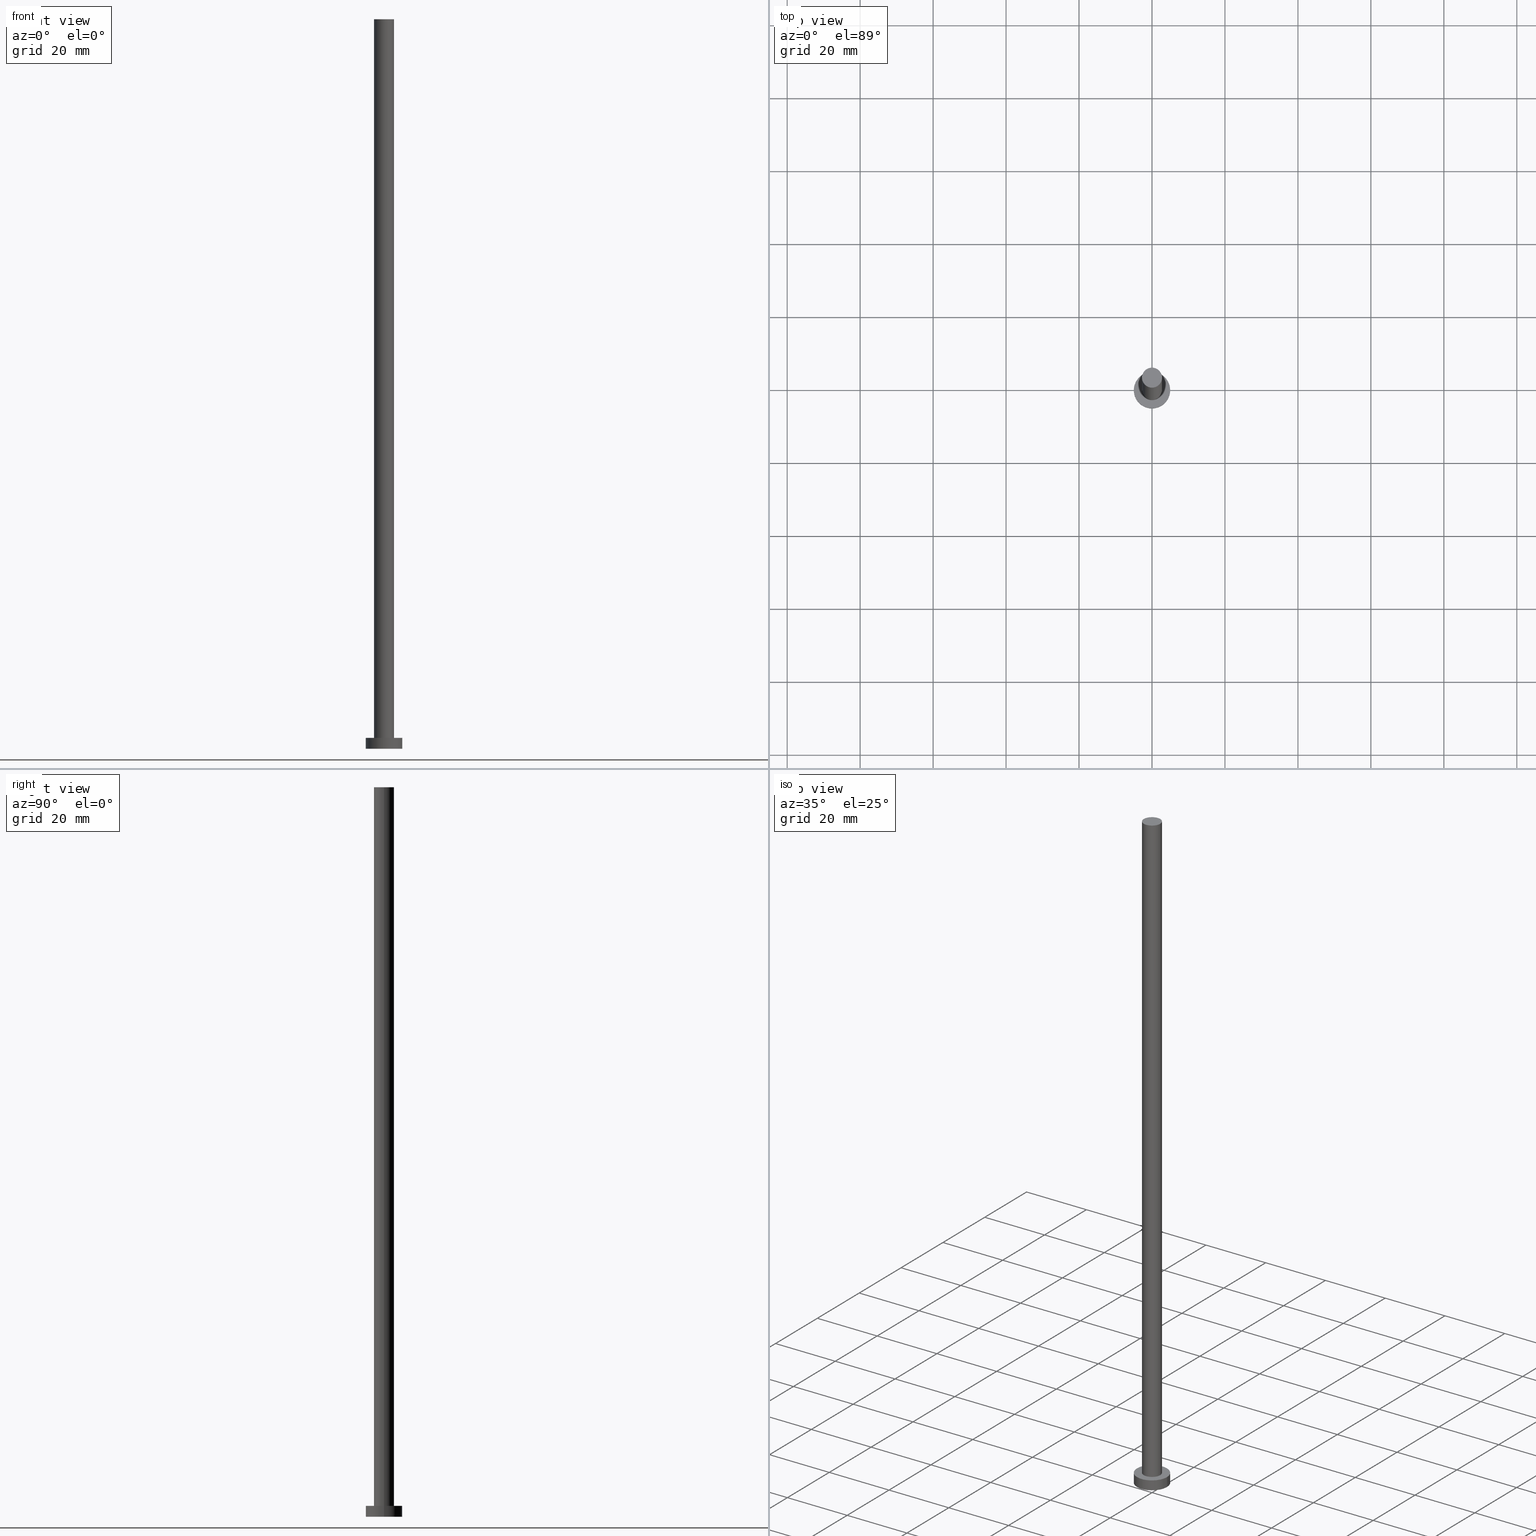
[diagram: canonical four-view strip — front | top / right | iso, engineering-drawing reading convention]
A machine part, canonical four-view strip (front | top / right | iso — engineering-drawing reading convention). The complete STEP part file that produces these views, byte-faithful:
ISO-10303-21;
HEADER;
FILE_DESCRIPTION (( 'STEP AP203' ),
    '1' );
FILE_NAME ('3cec.STEP',
    '2023-02-12T12:25:18',
    ( '' ),
    ( '' ),
    'SwSTEP 2.0',
    'SolidWorks 2019',
    '' );
FILE_SCHEMA (( 'CONFIG_CONTROL_DESIGN' ));
ENDSEC;

DATA;
#1 = CARTESIAN_POINT ( 'NONE',  ( 0.000000000000000000, 0.000000000000000000, 200.0000000000000000 ) ) ;
#2 = ORIENTED_EDGE ( 'NONE', *, *, #71, .T. ) ;
#3 = CALENDAR_DATE ( 2023, 12, 2 ) ;
#4 = CARTESIAN_POINT ( 'NONE',  ( -5.000000000000000000, 0.000000000000000000, 3.000000000000000000 ) ) ;
#5 = MECHANICAL_CONTEXT ( 'NONE', #187, 'mechanical' ) ;
#6 = DIRECTION ( 'NONE',  ( -0.000000000000000000, -0.000000000000000000, -1.000000000000000000 ) ) ;
#7 = DATE_TIME_ROLE ( 'creation_date' ) ;
#8 = COORDINATED_UNIVERSAL_TIME_OFFSET ( 1, 0, .AHEAD. ) ;
#9 = CARTESIAN_POINT ( 'NONE',  ( -5.000000000000000000, 0.000000000000000000, 0.000000000000000000 ) ) ;
#10 = CC_DESIGN_SECURITY_CLASSIFICATION ( #22, ( #102 ) ) ;
#11 = APPROVAL ( #156, 'NEUR�EN�' ) ;
#12 = CC_DESIGN_PERSON_AND_ORGANIZATION_ASSIGNMENT ( #144, #218, ( #102 ) ) ;
#13 =( GEOMETRIC_REPRESENTATION_CONTEXT ( 3 ) GLOBAL_UNCERTAINTY_ASSIGNED_CONTEXT ( ( #166 ) ) GLOBAL_UNIT_ASSIGNED_CONTEXT ( ( #28, #196, #237 ) ) REPRESENTATION_CONTEXT ( 'NONE', 'WORKASPACE' ) );
#14 = ORIENTED_EDGE ( 'NONE', *, *, #81, .F. ) ;
#15 = ORIENTED_EDGE ( 'NONE', *, *, #146, .T. ) ;
#16 = DESIGN_CONTEXT ( 'detailed design', #97, 'design' ) ;
#17 = PERSON ( 'NEUR�EN�', 'NEUR�EN�', 'NEUR�EN�', ('NEUR�EN�'), ('NEUR�EN�'), ('NEUR�EN�') ) ;
#18 = ORIENTED_EDGE ( 'NONE', *, *, #203, .F. ) ;
#19 = CC_DESIGN_PERSON_AND_ORGANIZATION_ASSIGNMENT ( #89, #30, ( #204 ) ) ;
#20 = VERTEX_POINT ( 'NONE', #103 ) ;
#21 = DIRECTION ( 'NONE',  ( 1.000000000000000000, 0.000000000000000000, 0.000000000000000000 ) ) ;
#22 = SECURITY_CLASSIFICATION ( '', '', #80 ) ;
#23 = ORIENTED_EDGE ( 'NONE', *, *, #244, .T. ) ;
#24 = FACE_OUTER_BOUND ( 'NONE', #186, .T. ) ;
#25 = LINE ( 'NONE', #143, #164 ) ;
#26 = AXIS2_PLACEMENT_3D ( 'NONE', #119, #217, #47 ) ;
#27 = DIRECTION ( 'NONE',  ( 1.000000000000000000, 0.000000000000000000, 0.000000000000000000 ) ) ;
#28 =( LENGTH_UNIT ( ) NAMED_UNIT ( * ) SI_UNIT ( .MILLI., .METRE. ) );
#29 = DIRECTION ( 'NONE',  ( -0.000000000000000000, -0.000000000000000000, -1.000000000000000000 ) ) ;
#30 = PERSON_AND_ORGANIZATION_ROLE ( 'design_owner' ) ;
#31 = CARTESIAN_POINT ( 'NONE',  ( 0.000000000000000000, 0.000000000000000000, 3.000000000000000000 ) ) ;
#32 = CIRCLE ( 'NONE', #228, 2.750000000000000000 ) ;
#33 = DIRECTION ( 'NONE',  ( 0.000000000000000000, 0.000000000000000000, 1.000000000000000000 ) ) ;
#34 = ORGANIZATION ( 'NEUR�EN�', 'NEUR�EN�', '' ) ;
#35 = PRODUCT_DEFINITION ( 'NEZN�M�', '', #102, #16 ) ;
#36 = ORIENTED_EDGE ( 'NONE', *, *, #244, .F. ) ;
#37 = EDGE_CURVE ( 'NONE', #114, #249, #55, .T. ) ;
#38 = VECTOR ( 'NONE', #185, 1000.000000000000000 ) ;
#39 = APPROVAL_ROLE ( '' ) ;
#40 = EDGE_CURVE ( 'NONE', #85, #20, #49, .T. ) ;
#41 = CARTESIAN_POINT ( 'NONE',  ( -2.750000000000000000, 0.000000000000000000, 3.000000000000000000 ) ) ;
#42 = CC_DESIGN_DATE_AND_TIME_ASSIGNMENT ( #176, #7, ( #35 ) ) ;
#43 = ORIENTED_EDGE ( 'NONE', *, *, #37, .F. ) ;
#44 = EDGE_CURVE ( 'NONE', #174, #227, #132, .T. ) ;
#45 = LOCAL_TIME ( 13, 25, 18.00000000000000000, #149 ) ;
#46 = DIRECTION ( 'NONE',  ( 0.000000000000000000, 0.000000000000000000, 1.000000000000000000 ) ) ;
#47 = DIRECTION ( 'NONE',  ( 1.000000000000000000, 0.000000000000000000, -0.000000000000000000 ) ) ;
#48 = APPROVAL_STATUS ( 'not_yet_approved' ) ;
#49 = CIRCLE ( 'NONE', #236, 2.750000000000000000 ) ;
#50 = DIRECTION ( 'NONE',  ( 1.000000000000000000, 0.000000000000000000, -0.000000000000000000 ) ) ;
#51 = CYLINDRICAL_SURFACE ( 'NONE', #131, 2.750000000000000000 ) ;
#52 = PERSON_AND_ORGANIZATION ( #17, #34 ) ;
#53 = CARTESIAN_POINT ( 'NONE',  ( 5.000000000000000000, 6.123233995736766282E-16, 3.000000000000000000 ) ) ;
#54 = AXIS2_PLACEMENT_3D ( 'NONE', #64, #230, #250 ) ;
#55 = CIRCLE ( 'NONE', #253, 5.000000000000000000 ) ;
#56 = ORIENTED_EDGE ( 'NONE', *, *, #44, .T. ) ;
#57 = CALENDAR_DATE ( 2023, 12, 2 ) ;
#58 = APPROVAL ( #255, 'NEUR�EN�' ) ;
#59 = CARTESIAN_POINT ( 'NONE',  ( 5.000000000000000000, 6.123233995736766282E-16, 3.000000000000000000 ) ) ;
#60 = AXIS2_PLACEMENT_3D ( 'NONE', #161, #111, #75 ) ;
#61 = CC_DESIGN_DATE_AND_TIME_ASSIGNMENT ( #246, #210, ( #22 ) ) ;
#62 = ORIENTED_EDGE ( 'NONE', *, *, #37, .T. ) ;
#63 = ADVANCED_FACE ( 'NONE', ( #24 ), #141, .F. ) ;
#64 = CARTESIAN_POINT ( 'NONE',  ( 0.000000000000000000, 0.000000000000000000, 200.0000000000000000 ) ) ;
#65 = ORIENTED_EDGE ( 'NONE', *, *, #127, .F. ) ;
#66 = CARTESIAN_POINT ( 'NONE',  ( 0.000000000000000000, 0.000000000000000000, 3.000000000000000000 ) ) ;
#67 = AXIS2_PLACEMENT_3D ( 'NONE', #31, #241, #76 ) ;
#68 = VERTEX_POINT ( 'NONE', #41 ) ;
#69 = DATE_AND_TIME ( #86, #45 ) ;
#70 = APPROVAL_ROLE ( '' ) ;
#71 = EDGE_CURVE ( 'NONE', #223, #68, #243, .T. ) ;
#72 = CARTESIAN_POINT ( 'NONE',  ( 0.000000000000000000, 0.000000000000000000, 3.000000000000000000 ) ) ;
#73 = APPLICATION_PROTOCOL_DEFINITION ( 'international standard', 'config_control_design', 1994, #187 ) ;
#74 = CC_DESIGN_APPROVAL ( #58, ( #35 ) ) ;
#75 = DIRECTION ( 'NONE',  ( 1.000000000000000000, 0.000000000000000000, 0.000000000000000000 ) ) ;
#76 = DIRECTION ( 'NONE',  ( 1.000000000000000000, 0.000000000000000000, -0.000000000000000000 ) ) ;
#77 = MANIFOLD_SOLID_BREP ( 'P�idat vysunut�m3', #201 ) ;
#78 = ADVANCED_FACE ( 'NONE', ( #101 ), #212, .T. ) ;
#79 = EDGE_LOOP ( 'NONE', ( #56, #15 ) ) ;
#80 = SECURITY_CLASSIFICATION_LEVEL ( 'unclassified' ) ;
#81 = EDGE_CURVE ( 'NONE', #20, #85, #32, .T. ) ;
#82 = EDGE_LOOP ( 'NONE', ( #172, #213, #62, #105 ) ) ;
#83 = ORIENTED_EDGE ( 'NONE', *, *, #40, .T. ) ;
#84 = CARTESIAN_POINT ( 'NONE',  ( -2.750000000000000000, 0.000000000000000000, 200.0000000000000000 ) ) ;
#85 = VERTEX_POINT ( 'NONE', #120 ) ;
#86 = CALENDAR_DATE ( 2023, 12, 2 ) ;
#87 = DIRECTION ( 'NONE',  ( 0.000000000000000000, 0.000000000000000000, 1.000000000000000000 ) ) ;
#88 = CARTESIAN_POINT ( 'NONE',  ( 0.000000000000000000, 0.000000000000000000, 200.0000000000000000 ) ) ;
#89 = PERSON_AND_ORGANIZATION ( #17, #34 ) ;
#90 = FACE_BOUND ( 'NONE', #158, .T. ) ;
#91 = CC_DESIGN_PERSON_AND_ORGANIZATION_ASSIGNMENT ( #199, #173, ( #35 ) ) ;
#92 = CARTESIAN_POINT ( 'NONE',  ( 0.000000000000000000, 0.000000000000000000, 0.000000000000000000 ) ) ;
#93 = LOCAL_TIME ( 13, 25, 18.00000000000000000, #248 ) ;
#94 = FACE_OUTER_BOUND ( 'NONE', #254, .T. ) ;
#95 = ADVANCED_BREP_SHAPE_REPRESENTATION ( '3cec', ( #77, #148 ), #13 ) ;
#96 = VECTOR ( 'NONE', #6, 1000.000000000000000 ) ;
#97 = APPLICATION_CONTEXT ( 'configuration controlled 3d designs of mechanical parts and assemblies' ) ;
#98 = ORIENTED_EDGE ( 'NONE', *, *, #81, .T. ) ;
#99 = PERSON_AND_ORGANIZATION ( #17, #34 ) ;
#100 = PERSON_AND_ORGANIZATION_ROLE ( 'classification_officer' ) ;
#101 = FACE_OUTER_BOUND ( 'NONE', #193, .T. ) ;
#102 = PRODUCT_DEFINITION_FORMATION_WITH_SPECIFIED_SOURCE ( 'LIBOVOLN�', '', #204, .NOT_KNOWN. ) ;
#103 = CARTESIAN_POINT ( 'NONE',  ( -2.750000000000000000, 0.000000000000000000, 200.0000000000000000 ) ) ;
#104 = LINE ( 'NONE', #84, #108 ) ;
#105 = ORIENTED_EDGE ( 'NONE', *, *, #165, .F. ) ;
#106 = ORIENTED_EDGE ( 'NONE', *, *, #165, .T. ) ;
#107 = EDGE_CURVE ( 'NONE', #227, #114, #225, .T. ) ;
#108 = VECTOR ( 'NONE', #159, 1000.000000000000000 ) ;
#109 = APPLICATION_PROTOCOL_DEFINITION ( 'international standard', 'config_control_design', 1994, #97 ) ;
#110 = ADVANCED_FACE ( 'NONE', ( #189 ), #169, .T. ) ;
#111 = DIRECTION ( 'NONE',  ( 0.000000000000000000, 0.000000000000000000, 1.000000000000000000 ) ) ;
#112 = CIRCLE ( 'NONE', #125, 5.000000000000000000 ) ;
#113 = PRODUCT_DEFINITION_SHAPE ( 'NONE', 'NONE',  #35 ) ;
#114 = VERTEX_POINT ( 'NONE', #252 ) ;
#115 = ORIENTED_EDGE ( 'NONE', *, *, #71, .F. ) ;
#116 = PERSON_AND_ORGANIZATION ( #17, #34 ) ;
#117 = AXIS2_PLACEMENT_3D ( 'NONE', #88, #33, #50 ) ;
#118 = PERSON_AND_ORGANIZATION_ROLE ( 'design_supplier' ) ;
#119 = CARTESIAN_POINT ( 'NONE',  ( 0.000000000000000000, 0.000000000000000000, 0.000000000000000000 ) ) ;
#120 = CARTESIAN_POINT ( 'NONE',  ( 2.750000000000000000, 3.367778697655221012E-16, 200.0000000000000000 ) ) ;
#121 = ORIENTED_EDGE ( 'NONE', *, *, #203, .T. ) ;
#122 = DIRECTION ( 'NONE',  ( 1.000000000000000000, 0.000000000000000000, 0.000000000000000000 ) ) ;
#123 = CARTESIAN_POINT ( 'NONE',  ( 0.000000000000000000, 0.000000000000000000, 3.000000000000000000 ) ) ;
#124 = LINE ( 'NONE', #202, #96 ) ;
#125 = AXIS2_PLACEMENT_3D ( 'NONE', #66, #140, #216 ) ;
#126 = COORDINATED_UNIVERSAL_TIME_OFFSET ( 1, 0, .AHEAD. ) ;
#127 = EDGE_CURVE ( 'NONE', #20, #68, #104, .T. ) ;
#128 = CARTESIAN_POINT ( 'NONE',  ( 2.750000000000000000, 3.367778697655221012E-16, 3.000000000000000000 ) ) ;
#129 = CALENDAR_DATE ( 2023, 12, 2 ) ;
#130 = DIRECTION ( 'NONE',  ( 1.000000000000000000, 0.000000000000000000, 0.000000000000000000 ) ) ;
#131 = AXIS2_PLACEMENT_3D ( 'NONE', #150, #29, #219 ) ;
#132 = CIRCLE ( 'NONE', #145, 5.000000000000000000 ) ;
#133 = APPROVAL_DATE_TIME ( #226, #11 ) ;
#134 = DIRECTION ( 'NONE',  ( -0.000000000000000000, -0.000000000000000000, -1.000000000000000000 ) ) ;
#135 = DIRECTION ( 'NONE',  ( 0.000000000000000000, 0.000000000000000000, 1.000000000000000000 ) ) ;
#136 = ORIENTED_EDGE ( 'NONE', *, *, #208, .F. ) ;
#137 = AXIS2_PLACEMENT_3D ( 'NONE', #192, #134, #247 ) ;
#138 = DIRECTION ( 'NONE',  ( 0.000000000000000000, 0.000000000000000000, 1.000000000000000000 ) ) ;
#139 = CIRCLE ( 'NONE', #60, 2.750000000000000000 ) ;
#140 = DIRECTION ( 'NONE',  ( 0.000000000000000000, 0.000000000000000000, 1.000000000000000000 ) ) ;
#141 = PLANE ( 'NONE',  #26 ) ;
#142 = APPROVAL_DATE_TIME ( #69, #235 ) ;
#143 = CARTESIAN_POINT ( 'NONE',  ( -5.000000000000000000, 0.000000000000000000, 3.000000000000000000 ) ) ;
#144 = PERSON_AND_ORGANIZATION ( #17, #34 ) ;
#145 = AXIS2_PLACEMENT_3D ( 'NONE', #214, #46, #122 ) ;
#146 = EDGE_CURVE ( 'NONE', #227, #174, #112, .T. ) ;
#147 = DIRECTION ( 'NONE',  ( -0.000000000000000000, -0.000000000000000000, -1.000000000000000000 ) ) ;
#148 = AXIS2_PLACEMENT_3D ( 'NONE', #92, #232, #178 ) ;
#149 = COORDINATED_UNIVERSAL_TIME_OFFSET ( 1, 0, .AHEAD. ) ;
#150 = CARTESIAN_POINT ( 'NONE',  ( 0.000000000000000000, 0.000000000000000000, 200.0000000000000000 ) ) ;
#151 = DIRECTION ( 'NONE',  ( 0.000000000000000000, 0.000000000000000000, 1.000000000000000000 ) ) ;
#152 = CC_DESIGN_PERSON_AND_ORGANIZATION_ASSIGNMENT ( #99, #100, ( #22 ) ) ;
#153 = CC_DESIGN_APPROVAL ( #11, ( #22 ) ) ;
#154 = ORIENTED_EDGE ( 'NONE', *, *, #208, .T. ) ;
#155 = DIRECTION ( 'NONE',  ( 0.000000000000000000, 0.000000000000000000, 1.000000000000000000 ) ) ;
#156 = APPROVAL_STATUS ( 'not_yet_approved' ) ;
#157 = APPROVAL_PERSON_ORGANIZATION ( #220, #58, #195 ) ;
#158 = EDGE_LOOP ( 'NONE', ( #18, #115 ) ) ;
#159 = DIRECTION ( 'NONE',  ( -0.000000000000000000, -0.000000000000000000, -1.000000000000000000 ) ) ;
#160 = DATE_AND_TIME ( #3, #181 ) ;
#161 = CARTESIAN_POINT ( 'NONE',  ( 0.000000000000000000, 0.000000000000000000, 3.000000000000000000 ) ) ;
#162 = LOCAL_TIME ( 13, 25, 18.00000000000000000, #167 ) ;
#163 = AXIS2_PLACEMENT_3D ( 'NONE', #123, #135, #211 ) ;
#164 = VECTOR ( 'NONE', #200, 1000.000000000000000 ) ;
#165 = EDGE_CURVE ( 'NONE', #174, #249, #25, .T. ) ;
#166 = UNCERTAINTY_MEASURE_WITH_UNIT (LENGTH_MEASURE( 1.000000000000000082E-05 ), #28, 'distance_accuracy_value', 'NONE');
#167 = COORDINATED_UNIVERSAL_TIME_OFFSET ( 1, 0, .AHEAD. ) ;
#168 = ORIENTED_EDGE ( 'NONE', *, *, #44, .F. ) ;
#169 = CYLINDRICAL_SURFACE ( 'NONE', #54, 2.750000000000000000 ) ;
#170 = ADVANCED_FACE ( 'NONE', ( #197 ), #240, .T. ) ;
#171 = DIRECTION ( 'NONE',  ( 1.000000000000000000, 0.000000000000000000, 0.000000000000000000 ) ) ;
#172 = ORIENTED_EDGE ( 'NONE', *, *, #146, .F. ) ;
#173 = PERSON_AND_ORGANIZATION_ROLE ( 'creator' ) ;
#174 = VERTEX_POINT ( 'NONE', #4 ) ;
#175 = DIRECTION ( 'NONE',  ( -1.000000000000000000, 0.000000000000000000, 0.000000000000000000 ) ) ;
#176 = DATE_AND_TIME ( #129, #206 ) ;
#177 = PLANE ( 'NONE',  #117 ) ;
#178 = DIRECTION ( 'NONE',  ( 1.000000000000000000, 0.000000000000000000, 0.000000000000000000 ) ) ;
#179 = CARTESIAN_POINT ( 'NONE',  ( 0.000000000000000000, 0.000000000000000000, 0.000000000000000000 ) ) ;
#180 = AXIS2_PLACEMENT_3D ( 'NONE', #179, #151, #130 ) ;
#181 = LOCAL_TIME ( 13, 25, 18.00000000000000000, #126 ) ;
#182 = SHAPE_DEFINITION_REPRESENTATION ( #113, #95 ) ;
#183 = ORIENTED_EDGE ( 'NONE', *, *, #127, .T. ) ;
#184 = CC_DESIGN_PERSON_AND_ORGANIZATION_ASSIGNMENT ( #207, #118, ( #102 ) ) ;
#185 = DIRECTION ( 'NONE',  ( -0.000000000000000000, -0.000000000000000000, -1.000000000000000000 ) ) ;
#186 = EDGE_LOOP ( 'NONE', ( #36, #43 ) ) ;
#187 = APPLICATION_CONTEXT ( 'configuration controlled 3d designs of mechanical parts and assemblies' ) ;
#188 = ADVANCED_FACE ( 'NONE', ( #94 ), #177, .T. ) ;
#189 = FACE_OUTER_BOUND ( 'NONE', #205, .T. ) ;
#190 = EDGE_LOOP ( 'NONE', ( #251, #154, #2, #65 ) ) ;
#191 = APPROVAL_PERSON_ORGANIZATION ( #116, #11, #39 ) ;
#192 = CARTESIAN_POINT ( 'NONE',  ( 0.000000000000000000, 0.000000000000000000, 3.000000000000000000 ) ) ;
#193 = EDGE_LOOP ( 'NONE', ( #229, #168, #106, #23 ) ) ;
#194 = CARTESIAN_POINT ( 'NONE',  ( 0.000000000000000000, 0.000000000000000000, 0.000000000000000000 ) ) ;
#195 = APPROVAL_ROLE ( '' ) ;
#196 =( NAMED_UNIT ( * ) PLANE_ANGLE_UNIT ( ) SI_UNIT ( $, .RADIAN. ) );
#197 = FACE_OUTER_BOUND ( 'NONE', #82, .T. ) ;
#198 = ADVANCED_FACE ( 'NONE', ( #234 ), #51, .T. ) ;
#199 = PERSON_AND_ORGANIZATION ( #17, #34 ) ;
#200 = DIRECTION ( 'NONE',  ( -0.000000000000000000, -0.000000000000000000, -1.000000000000000000 ) ) ;
#201 = CLOSED_SHELL ( 'NONE', ( #198, #170, #78, #221, #63, #110, #188 ) ) ;
#202 = CARTESIAN_POINT ( 'NONE',  ( 2.750000000000000000, 3.367778697655221012E-16, 200.0000000000000000 ) ) ;
#203 = EDGE_CURVE ( 'NONE', #68, #223, #139, .T. ) ;
#204 = PRODUCT ( '3cec', '3cec', '', ( #5 ) ) ;
#205 = EDGE_LOOP ( 'NONE', ( #136, #14, #183, #121 ) ) ;
#206 = LOCAL_TIME ( 13, 25, 18.00000000000000000, #8 ) ;
#207 = PERSON_AND_ORGANIZATION ( #17, #34 ) ;
#208 = EDGE_CURVE ( 'NONE', #85, #223, #124, .T. ) ;
#209 = AXIS2_PLACEMENT_3D ( 'NONE', #72, #147, #175 ) ;
#210 = DATE_TIME_ROLE ( 'classification_date' ) ;
#211 = DIRECTION ( 'NONE',  ( 1.000000000000000000, 0.000000000000000000, 0.000000000000000000 ) ) ;
#212 = CYLINDRICAL_SURFACE ( 'NONE', #137, 5.000000000000000000 ) ;
#213 = ORIENTED_EDGE ( 'NONE', *, *, #107, .T. ) ;
#214 = CARTESIAN_POINT ( 'NONE',  ( 0.000000000000000000, 0.000000000000000000, 3.000000000000000000 ) ) ;
#215 = CC_DESIGN_APPROVAL ( #235, ( #102 ) ) ;
#216 = DIRECTION ( 'NONE',  ( 1.000000000000000000, 0.000000000000000000, 0.000000000000000000 ) ) ;
#217 = DIRECTION ( 'NONE',  ( 0.000000000000000000, 0.000000000000000000, 1.000000000000000000 ) ) ;
#218 = PERSON_AND_ORGANIZATION_ROLE ( 'creator' ) ;
#219 = DIRECTION ( 'NONE',  ( -1.000000000000000000, 0.000000000000000000, 0.000000000000000000 ) ) ;
#220 = PERSON_AND_ORGANIZATION ( #17, #34 ) ;
#221 = ADVANCED_FACE ( 'NONE', ( #90, #238 ), #222, .T. ) ;
#222 = PLANE ( 'NONE',  #67 ) ;
#223 = VERTEX_POINT ( 'NONE', #128 ) ;
#224 = CALENDAR_DATE ( 2023, 12, 2 ) ;
#225 = LINE ( 'NONE', #59, #38 ) ;
#226 = DATE_AND_TIME ( #57, #93 ) ;
#227 = VERTEX_POINT ( 'NONE', #53 ) ;
#228 = AXIS2_PLACEMENT_3D ( 'NONE', #1, #155, #21 ) ;
#229 = ORIENTED_EDGE ( 'NONE', *, *, #107, .F. ) ;
#230 = DIRECTION ( 'NONE',  ( -0.000000000000000000, -0.000000000000000000, -1.000000000000000000 ) ) ;
#231 = CARTESIAN_POINT ( 'NONE',  ( 0.000000000000000000, 0.000000000000000000, 200.0000000000000000 ) ) ;
#232 = DIRECTION ( 'NONE',  ( 0.000000000000000000, 0.000000000000000000, 1.000000000000000000 ) ) ;
#233 = APPROVAL_DATE_TIME ( #160, #58 ) ;
#234 = FACE_OUTER_BOUND ( 'NONE', #190, .T. ) ;
#235 = APPROVAL ( #48, 'NEUR�EN�' ) ;
#236 = AXIS2_PLACEMENT_3D ( 'NONE', #231, #87, #171 ) ;
#237 =( NAMED_UNIT ( * ) SI_UNIT ( $, .STERADIAN. ) SOLID_ANGLE_UNIT ( ) );
#238 = FACE_OUTER_BOUND ( 'NONE', #79, .T. ) ;
#239 = APPROVAL_PERSON_ORGANIZATION ( #52, #235, #70 ) ;
#240 = CYLINDRICAL_SURFACE ( 'NONE', #209, 5.000000000000000000 ) ;
#241 = DIRECTION ( 'NONE',  ( 0.000000000000000000, 0.000000000000000000, 1.000000000000000000 ) ) ;
#242 = PRODUCT_RELATED_PRODUCT_CATEGORY ( 'detail', '', ( #204 ) ) ;
#243 = CIRCLE ( 'NONE', #163, 2.750000000000000000 ) ;
#244 = EDGE_CURVE ( 'NONE', #249, #114, #245, .T. ) ;
#245 = CIRCLE ( 'NONE', #180, 5.000000000000000000 ) ;
#246 = DATE_AND_TIME ( #224, #162 ) ;
#247 = DIRECTION ( 'NONE',  ( -1.000000000000000000, 0.000000000000000000, 0.000000000000000000 ) ) ;
#248 = COORDINATED_UNIVERSAL_TIME_OFFSET ( 1, 0, .AHEAD. ) ;
#249 = VERTEX_POINT ( 'NONE', #9 ) ;
#250 = DIRECTION ( 'NONE',  ( -1.000000000000000000, 0.000000000000000000, 0.000000000000000000 ) ) ;
#251 = ORIENTED_EDGE ( 'NONE', *, *, #40, .F. ) ;
#252 = CARTESIAN_POINT ( 'NONE',  ( 5.000000000000000000, 6.123233995736766282E-16, 0.000000000000000000 ) ) ;
#253 = AXIS2_PLACEMENT_3D ( 'NONE', #194, #138, #27 ) ;
#254 = EDGE_LOOP ( 'NONE', ( #98, #83 ) ) ;
#255 = APPROVAL_STATUS ( 'not_yet_approved' ) ;
ENDSEC;
END-ISO-10303-21;
